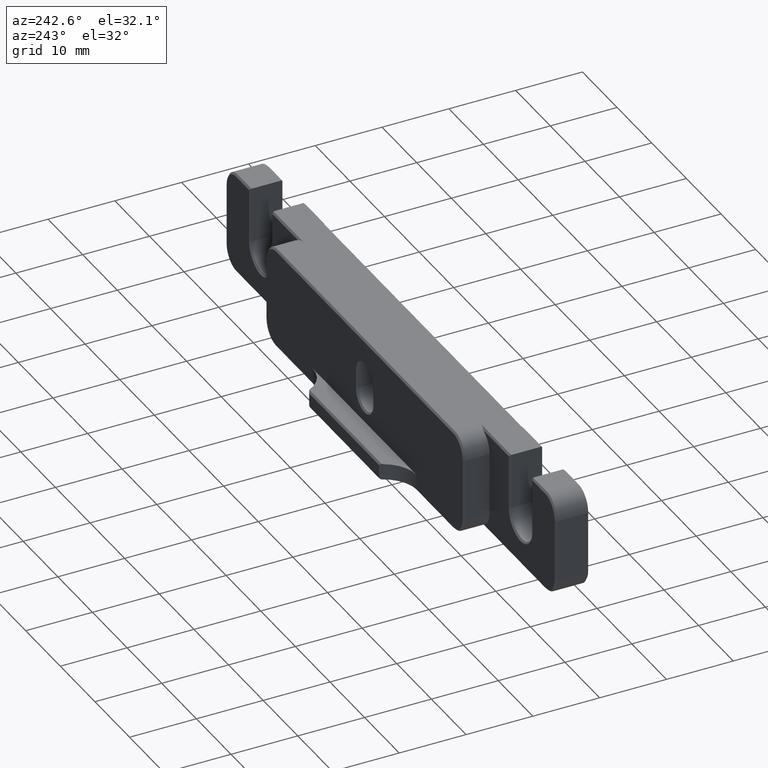
[diagram: clean part render]
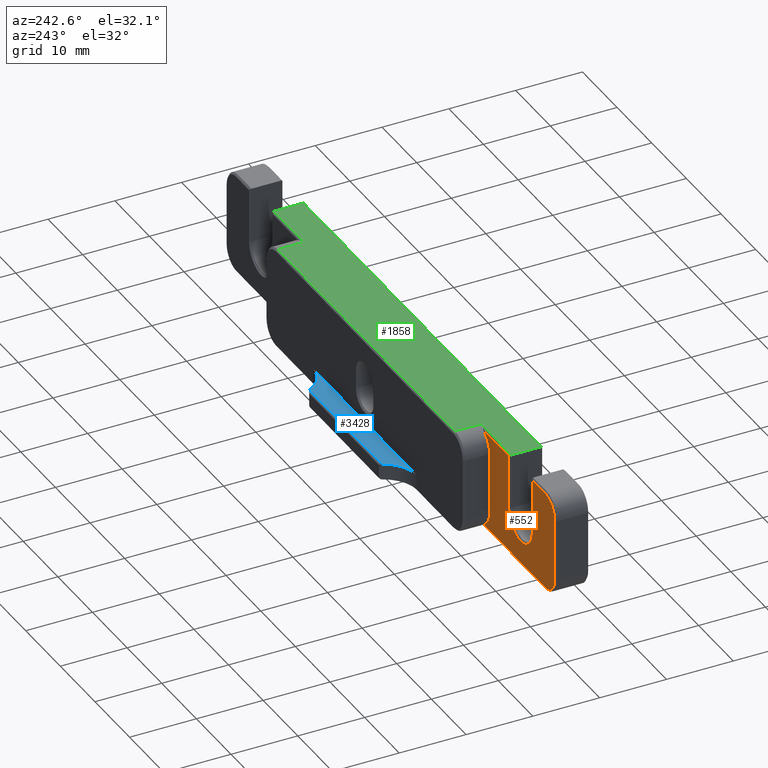
[diagram: same view with three faces highlighted in distinct colors, each labeled with its STEP entity id]
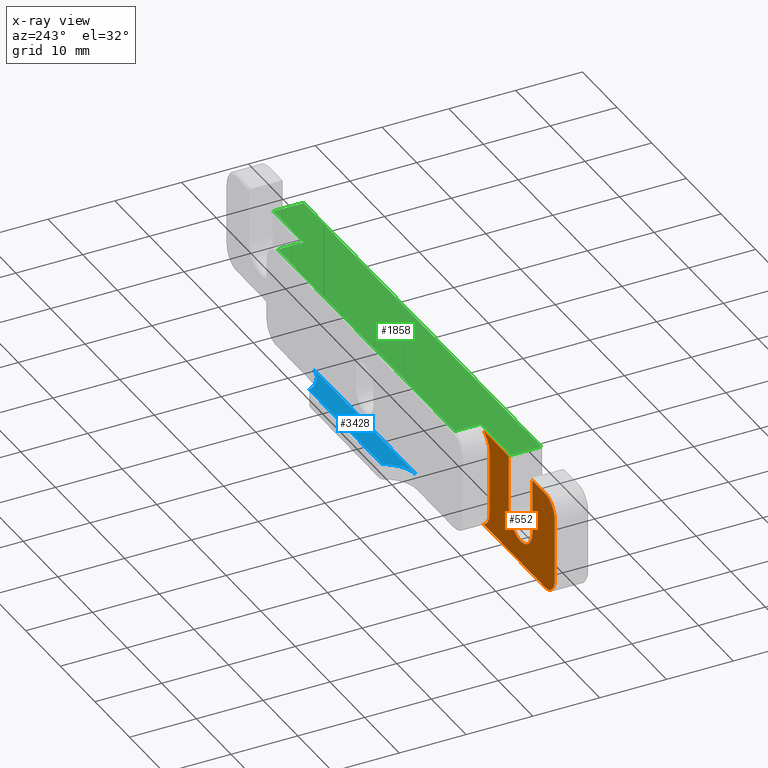
[diagram: x-ray of the same camera — body ghosted, the three highlighted faces saturated]
A machine part, auxiliary view with three faces highlighted in distinct colors.
The next image is the same camera in x-ray (body ghosted, the three faces saturated) — at least one of them is partly hidden behind the body in this view.
Their STEP definitions:

[orange] entity #552 — the highlighted planar face has unit normal (-0, 1, 0).
#81 = LINE ( 'NONE', #4003, #3856 ) ;
#115 = AXIS2_PLACEMENT_3D ( 'NONE', #4234, #1261, #3832 ) ;
#211 = ORIENTED_EDGE ( 'NONE', *, *, #3756, .T. ) ;
#268 = CARTESIAN_POINT ( 'NONE',  ( 0.000000000000000000, 5.000000000000000000, -4.336808689942017736E-16 ) ) ;
#295 = LINE ( 'NONE', #3530, #1157 ) ;
#363 = CIRCLE ( 'NONE', #3997, 3.000000000000000000 ) ;
#433 = EDGE_CURVE ( 'NONE', #4457, #1666, #295, .T. ) ;
#460 = LINE ( 'NONE', #2752, #3255 ) ;
#468 = CARTESIAN_POINT ( 'NONE',  ( -47.37500000000000000, 5.000000000000000000, 4.620000000000000107 ) ) ;
#486 = EDGE_CURVE ( 'NONE', #2975, #1041, #81, .T. ) ;
#493 = EDGE_CURVE ( 'NONE', #4743, #3083, #4669, .T. ) ;
#496 = CARTESIAN_POINT ( 'NONE',  ( -44.62500000000000000, 5.000000000000000000, -7.370000000000003659 ) ) ;
#545 = EDGE_CURVE ( 'NONE', #1882, #4457, #4193, .T. ) ;
#552 = ADVANCED_FACE ( 'NONE', ( #1533 ), #1049, .T. ) ;
#628 = DIRECTION ( 'NONE',  ( 0.000000000000000000, 0.000000000000000000, 1.000000000000000000 ) ) ;
#649 = CARTESIAN_POINT ( 'NONE',  ( -25.57499999999999574, 5.000000000000000000, -4.620000000000000995 ) ) ;
#741 = CIRCLE ( 'NONE', #2138, 2.750000000000002665 ) ;
#866 = VERTEX_POINT ( 'NONE', #4228 ) ;
#885 = DIRECTION ( 'NONE',  ( 0.000000000000000000, -1.000000000000000000, -0.000000000000000000 ) ) ;
#887 = ORIENTED_EDGE ( 'NONE', *, *, #1663, .T. ) ;
#902 = CIRCLE ( 'NONE', #3292, 3.000000000000000000 ) ;
#916 = CARTESIAN_POINT ( 'NONE',  ( -26.77395788082817418, 5.000000000000000000, 7.370000000000000107 ) ) ;
#952 = ORIENTED_EDGE ( 'NONE', *, *, #493, .T. ) ;
#1041 = VERTEX_POINT ( 'NONE', #3377 ) ;
#1049 = PLANE ( 'NONE',  #3021 ) ;
#1137 = ORIENTED_EDGE ( 'NONE', *, *, #3361, .T. ) ;
#1157 = VECTOR ( 'NONE', #3887, 1000.000000000000000 ) ;
#1260 = AXIS2_PLACEMENT_3D ( 'NONE', #2404, #885, #1650 ) ;
#1261 = DIRECTION ( 'NONE',  ( -0.000000000000000000, 1.000000000000000000, 0.000000000000000000 ) ) ;
#1335 = CARTESIAN_POINT ( 'NONE',  ( -34.07500000000000995, 5.000000000000000000, 7.370000000000000107 ) ) ;
#1406 = DIRECTION ( 'NONE',  ( -0.000000000000000000, 1.000000000000000000, 0.000000000000000000 ) ) ;
#1408 = ORIENTED_EDGE ( 'NONE', *, *, #4575, .T. ) ;
#1533 = FACE_OUTER_BOUND ( 'NONE', #4257, .T. ) ;
#1650 = DIRECTION ( 'NONE',  ( 0.000000000000000000, 0.000000000000000000, 1.000000000000000000 ) ) ;
#1659 = VERTEX_POINT ( 'NONE', #468 ) ;
#1663 = EDGE_CURVE ( 'NONE', #2549, #866, #460, .T. ) ;
#1666 = VERTEX_POINT ( 'NONE', #916 ) ;
#1712 = CARTESIAN_POINT ( 'NONE',  ( -28.57499999999999574, 5.000000000000000000, -4.620000000000000995 ) ) ;
#1723 = EDGE_CURVE ( 'NONE', #866, #1882, #3304, .T. ) ;
#1882 = VERTEX_POINT ( 'NONE', #3165 ) ;
#1921 = VERTEX_POINT ( 'NONE', #4760 ) ;
#1957 = VECTOR ( 'NONE', #1969, 1000.000000000000000 ) ;
#1969 = DIRECTION ( 'NONE',  ( 0.000000000000000000, 0.000000000000000000, 1.000000000000000000 ) ) ;
#1976 = CIRCLE ( 'NONE', #115, 2.750000000000002665 ) ;
#2041 = DIRECTION ( 'NONE',  ( 0.000000000000000000, -1.000000000000000000, -0.000000000000000000 ) ) ;
#2103 = CARTESIAN_POINT ( 'NONE',  ( -40.67500000000000426, 5.000000000000000000, 7.370000000000000107 ) ) ;
#2122 = ORIENTED_EDGE ( 'NONE', *, *, #1723, .T. ) ;
#2138 = AXIS2_PLACEMENT_3D ( 'NONE', #4732, #2796, #628 ) ;
#2141 = CARTESIAN_POINT ( 'NONE',  ( -44.62500000000000000, 5.000000000000000000, -7.370000000000000107 ) ) ;
#2383 = CARTESIAN_POINT ( 'NONE',  ( -25.57499999999999574, 5.000000000000000000, 4.619999999999999218 ) ) ;
#2404 = CARTESIAN_POINT ( 'NONE',  ( -37.50000000000000711, 5.000000000000000000, -0.6400000000000016787 ) ) ;
#2515 = DIRECTION ( 'NONE',  ( 0.000000000000000000, -0.000000000000000000, 1.000000000000000000 ) ) ;
#2549 = VERTEX_POINT ( 'NONE', #3063 ) ;
#2635 = ORIENTED_EDGE ( 'NONE', *, *, #3368, .T. ) ;
#2671 = VECTOR ( 'NONE', #3206, 1000.000000000000000 ) ;
#2752 = CARTESIAN_POINT ( 'NONE',  ( -40.92500000000000426, 5.000000000000000000, -0.6400000000000016787 ) ) ;
#2796 = DIRECTION ( 'NONE',  ( -0.000000000000000000, 1.000000000000000000, 0.000000000000000000 ) ) ;
#2846 = ORIENTED_EDGE ( 'NONE', *, *, #4122, .T. ) ;
#2898 = CARTESIAN_POINT ( 'NONE',  ( -26.77395788082817774, 5.000000000000000000, -7.370000000000000107 ) ) ;
#2975 = VERTEX_POINT ( 'NONE', #1712 ) ;
#2987 = VECTOR ( 'NONE', #4700, 1000.000000000000000 ) ;
#3021 = AXIS2_PLACEMENT_3D ( 'NONE', #268, #1406, #2515 ) ;
#3063 = CARTESIAN_POINT ( 'NONE',  ( -40.92500000000000426, 5.000000000000000000, 7.370000000000000107 ) ) ;
#3083 = VERTEX_POINT ( 'NONE', #496 ) ;
#3120 = DIRECTION ( 'NONE',  ( 0.000000000000000000, 0.000000000000000000, -1.000000000000000000 ) ) ;
#3125 = DIRECTION ( 'NONE',  ( 0.000000000000000000, 0.000000000000000000, 1.000000000000000000 ) ) ;
#3165 = CARTESIAN_POINT ( 'NONE',  ( -34.07500000000000995, 5.000000000000000000, -0.6400000000000191092 ) ) ;
#3168 = EDGE_CURVE ( 'NONE', #1659, #3220, #1976, .T. ) ;
#3206 = DIRECTION ( 'NONE',  ( 1.000000000000000000, 0.000000000000000000, 0.000000000000000000 ) ) ;
#3210 = DIRECTION ( 'NONE',  ( 0.000000000000000000, 0.000000000000000000, 1.000000000000000000 ) ) ;
#3220 = VERTEX_POINT ( 'NONE', #4601 ) ;
#3255 = VECTOR ( 'NONE', #3120, 1000.000000000000000 ) ;
#3292 = AXIS2_PLACEMENT_3D ( 'NONE', #649, #4311, #3513 ) ;
#3304 = CIRCLE ( 'NONE', #1260, 3.424999999999997602 ) ;
#3361 = EDGE_CURVE ( 'NONE', #2975, #4743, #902, .T. ) ;
#3368 = EDGE_CURVE ( 'NONE', #3220, #2549, #4469, .T. ) ;
#3377 = CARTESIAN_POINT ( 'NONE',  ( -28.57499999999999574, 5.000000000000000000, 4.619999999999999218 ) ) ;
#3386 = VECTOR ( 'NONE', #3953, 1000.000000000000000 ) ;
#3513 = DIRECTION ( 'NONE',  ( 1.156482317317871331E-15, 0.000000000000000000, 1.000000000000000000 ) ) ;
#3530 = CARTESIAN_POINT ( 'NONE',  ( -25.57499999999999574, 5.000000000000000000, 7.370000000000000107 ) ) ;
#3540 = ORIENTED_EDGE ( 'NONE', *, *, #433, .T. ) ;
#3587 = ORIENTED_EDGE ( 'NONE', *, *, #3168, .T. ) ;
#3605 = CARTESIAN_POINT ( 'NONE',  ( -34.07500000000000995, 5.000000000000000000, 7.619999999999999218 ) ) ;
#3631 = ORIENTED_EDGE ( 'NONE', *, *, #486, .F. ) ;
#3756 = EDGE_CURVE ( 'NONE', #1921, #1659, #4506, .T. ) ;
#3832 = DIRECTION ( 'NONE',  ( 0.000000000000000000, 0.000000000000000000, 1.000000000000000000 ) ) ;
#3856 = VECTOR ( 'NONE', #3210, 1000.000000000000000 ) ;
#3887 = DIRECTION ( 'NONE',  ( 1.000000000000000000, 0.000000000000000000, 0.000000000000000000 ) ) ;
#3953 = DIRECTION ( 'NONE',  ( -1.000000000000000000, 0.000000000000000000, 0.000000000000000000 ) ) ;
#3997 = AXIS2_PLACEMENT_3D ( 'NONE', #2383, #2041, #3125 ) ;
#4003 = CARTESIAN_POINT ( 'NONE',  ( -28.57499999999999574, 5.000000000000000000, -7.620000000000000107 ) ) ;
#4122 = EDGE_CURVE ( 'NONE', #1666, #1041, #363, .T. ) ;
#4184 = CARTESIAN_POINT ( 'NONE',  ( -47.37500000000000000, 5.000000000000000000, 4.620000000000000107 ) ) ;
#4193 = LINE ( 'NONE', #3605, #2987 ) ;
#4228 = CARTESIAN_POINT ( 'NONE',  ( -40.92500000000000426, 5.000000000000000000, -0.6400000000000016787 ) ) ;
#4234 = CARTESIAN_POINT ( 'NONE',  ( -44.62500000000000000, 5.000000000000000000, 4.619999999999999218 ) ) ;
#4257 = EDGE_LOOP ( 'NONE', ( #1137, #952, #1408, #211, #3587, #2635, #887, #2122, #4648, #3540, #2846, #3631 ) ) ;
#4311 = DIRECTION ( 'NONE',  ( 0.000000000000000000, -1.000000000000000000, -0.000000000000000000 ) ) ;
#4457 = VERTEX_POINT ( 'NONE', #1335 ) ;
#4469 = LINE ( 'NONE', #2103, #2671 ) ;
#4506 = LINE ( 'NONE', #4184, #1957 ) ;
#4575 = EDGE_CURVE ( 'NONE', #3083, #1921, #741, .T. ) ;
#4601 = CARTESIAN_POINT ( 'NONE',  ( -44.62500000000000000, 5.000000000000000000, 7.370000000000000107 ) ) ;
#4648 = ORIENTED_EDGE ( 'NONE', *, *, #545, .T. ) ;
#4669 = LINE ( 'NONE', #2141, #3386 ) ;
#4700 = DIRECTION ( 'NONE',  ( 0.000000000000000000, 0.000000000000000000, 1.000000000000000000 ) ) ;
#4732 = CARTESIAN_POINT ( 'NONE',  ( -44.62500000000000000, 5.000000000000000000, -4.620000000000000995 ) ) ;
#4743 = VERTEX_POINT ( 'NONE', #2898 ) ;
#4760 = CARTESIAN_POINT ( 'NONE',  ( -47.37500000000000000, 5.000000000000000000, -4.620000000000000995 ) ) ;

[blue] entity #3428 — the highlighted planar face has unit normal (0, 0, -1).
#43 = DIRECTION ( 'NONE',  ( -1.000000000000000000, 0.000000000000000000, -0.000000000000000000 ) ) ;
#206 = EDGE_CURVE ( 'NONE', #641, #2700, #4382, .T. ) ;
#420 = CARTESIAN_POINT ( 'NONE',  ( -10.37506756806112840, 11.75000000000001066, -5.080000000000000959 ) ) ;
#511 = ORIENTED_EDGE ( 'NONE', *, *, #4569, .T. ) ;
#516 = LINE ( 'NONE', #1632, #1931 ) ;
#641 = VERTEX_POINT ( 'NONE', #420 ) ;
#792 = DIRECTION ( 'NONE',  ( 0.000000000000000000, 0.000000000000000000, -1.000000000000000000 ) ) ;
#815 = VECTOR ( 'NONE', #4113, 999.9999999999998863 ) ;
#858 = VERTEX_POINT ( 'NONE', #3493 ) ;
#1007 = CARTESIAN_POINT ( 'NONE',  ( -10.60007507590181852, 11.52499249215932053, -5.080000000000000071 ) ) ;
#1017 = LINE ( 'NONE', #4247, #3186 ) ;
#1044 = CARTESIAN_POINT ( 'NONE',  ( 15.00000000000000000, 8.900000000000005684, -5.080000000000000959 ) ) ;
#1108 = CARTESIAN_POINT ( 'NONE',  ( -28.57499999999999574, -58.54410730380983807, -5.080000000000000959 ) ) ;
#1114 = CARTESIAN_POINT ( 'NONE',  ( -15.00000000000000000, 8.900000000000005684, -5.080000000000000071 ) ) ;
#1225 = EDGE_CURVE ( 'NONE', #1474, #3710, #1017, .T. ) ;
#1269 = ORIENTED_EDGE ( 'NONE', *, *, #3447, .T. ) ;
#1294 = DIRECTION ( 'NONE',  ( 1.000000000000000000, -0.000000000000000000, 0.000000000000000000 ) ) ;
#1314 = PLANE ( 'NONE',  #2155 ) ;
#1340 = ORIENTED_EDGE ( 'NONE', *, *, #206, .T. ) ;
#1474 = VERTEX_POINT ( 'NONE', #1114 ) ;
#1569 = ORIENTED_EDGE ( 'NONE', *, *, #1225, .T. ) ;
#1632 = CARTESIAN_POINT ( 'NONE',  ( -10.37506756806113017, 11.75000000000001066, -5.080000000000000959 ) ) ;
#1879 = CARTESIAN_POINT ( 'NONE',  ( -10.60007507590181675, 11.52499249215932231, -5.080000000000000071 ) ) ;
#1931 = VECTOR ( 'NONE', #3858, 1000.000000000000000 ) ;
#2060 = AXIS2_PLACEMENT_3D ( 'NONE', #3537, #4279, #3178 ) ;
#2155 = AXIS2_PLACEMENT_3D ( 'NONE', #1108, #792, #43 ) ;
#2179 = CIRCLE ( 'NONE', #2060, 5.000000000000000888 ) ;
#2595 = DIRECTION ( 'NONE',  ( -1.000000000000000000, 0.000000000000000000, 0.000000000000000000 ) ) ;
#2694 = ORIENTED_EDGE ( 'NONE', *, *, #4331, .T. ) ;
#2700 = VERTEX_POINT ( 'NONE', #1007 ) ;
#3178 = DIRECTION ( 'NONE',  ( -1.000000000000000000, 0.000000000000000000, 0.000000000000000000 ) ) ;
#3186 = VECTOR ( 'NONE', #1294, 1000.000000000000000 ) ;
#3372 = FACE_OUTER_BOUND ( 'NONE', #4139, .T. ) ;
#3428 = ADVANCED_FACE ( 'NONE', ( #3372 ), #1314, .F. ) ;
#3447 = EDGE_CURVE ( 'NONE', #2700, #1474, #4578, .T. ) ;
#3493 = CARTESIAN_POINT ( 'NONE',  ( 10.48585556278933062, 11.75000000000001066, -5.080000000000000071 ) ) ;
#3537 = CARTESIAN_POINT ( 'NONE',  ( 15.00000000000000000, 13.90000000000000568, -5.080000000000000071 ) ) ;
#3710 = VERTEX_POINT ( 'NONE', #1044 ) ;
#3711 = DIRECTION ( 'NONE',  ( 0.000000000000000000, 0.000000000000000000, -1.000000000000000000 ) ) ;
#3740 = CARTESIAN_POINT ( 'NONE',  ( -15.00000000000000000, 13.90000000000000568, -5.080000000000000071 ) ) ;
#3858 = DIRECTION ( 'NONE',  ( -1.000000000000000000, 0.000000000000000000, 0.000000000000000000 ) ) ;
#4113 = DIRECTION ( 'NONE',  ( -0.7071067811865489050, -0.7071067811865462405, -0.000000000000000000 ) ) ;
#4139 = EDGE_LOOP ( 'NONE', ( #2694, #511, #1340, #1269, #1569 ) ) ;
#4247 = CARTESIAN_POINT ( 'NONE',  ( -28.57499999999999574, 8.900000000000005684, -5.080000000000000959 ) ) ;
#4278 = AXIS2_PLACEMENT_3D ( 'NONE', #3740, #3711, #2595 ) ;
#4279 = DIRECTION ( 'NONE',  ( 0.000000000000000000, 0.000000000000000000, -1.000000000000000000 ) ) ;
#4331 = EDGE_CURVE ( 'NONE', #3710, #858, #2179, .T. ) ;
#4382 = LINE ( 'NONE', #1879, #815 ) ;
#4569 = EDGE_CURVE ( 'NONE', #858, #641, #516, .T. ) ;
#4578 = CIRCLE ( 'NONE', #4278, 5.000000000000000888 ) ;

[green] entity #1858 — the highlighted planar face has unit normal (0, 0, -1).
#64 = EDGE_CURVE ( 'NONE', #3741, #2620, #3156, .T. ) ;
#65 = VECTOR ( 'NONE', #108, 1000.000000000000000 ) ;
#72 = DIRECTION ( 'NONE',  ( -0.000000000000000000, 1.000000000000000000, 0.000000000000000000 ) ) ;
#108 = DIRECTION ( 'NONE',  ( 0.000000000000000000, 1.000000000000000000, 0.000000000000000000 ) ) ;
#141 = DIRECTION ( 'NONE',  ( 1.000000000000000000, 0.000000000000000000, 0.000000000000000000 ) ) ;
#143 = CARTESIAN_POINT ( 'NONE',  ( -47.62500000000000000, 0.2500000000000002220, 7.619999999999999218 ) ) ;
#181 = ORIENTED_EDGE ( 'NONE', *, *, #3081, .T. ) ;
#298 = CARTESIAN_POINT ( 'NONE',  ( 25.57499999999999929, 8.649999999999998579, 7.619999999999999218 ) ) ;
#330 = DIRECTION ( 'NONE',  ( 0.000000000000000000, -1.000000000000000000, 0.000000000000000000 ) ) ;
#342 = LINE ( 'NONE', #143, #2389 ) ;
#386 = EDGE_LOOP ( 'NONE', ( #2414, #4473, #2683, #181, #3380, #2426, #4733, #2181, #1610, #2044 ) ) ;
#501 = CARTESIAN_POINT ( 'NONE',  ( 34.32500000000000995, 0.2500000000000002220, 7.619999999999999218 ) ) ;
#506 = LINE ( 'NONE', #1952, #3365 ) ;
#515 = DIRECTION ( 'NONE',  ( -1.000000000000000000, 0.000000000000000000, 0.000000000000000000 ) ) ;
#605 = DIRECTION ( 'NONE',  ( -1.000000000000000000, 0.000000000000000000, 0.000000000000000000 ) ) ;
#644 = PLANE ( 'NONE',  #2332 ) ;
#703 = VECTOR ( 'NONE', #3418, 1000.000000000000000 ) ;
#811 = CARTESIAN_POINT ( 'NONE',  ( 25.57499999999999929, 4.750000000000000000, 7.619999999999999218 ) ) ;
#824 = EDGE_CURVE ( 'NONE', #2620, #909, #342, .T. ) ;
#842 = VECTOR ( 'NONE', #3759, 1000.000000000000000 ) ;
#870 = CARTESIAN_POINT ( 'NONE',  ( 28.57499999999999574, 0.2500000000000000000, 7.619999999999999218 ) ) ;
#899 = CARTESIAN_POINT ( 'NONE',  ( -34.32500000000000995, 0.2500000000000002220, 7.619999999999999218 ) ) ;
#909 = VERTEX_POINT ( 'NONE', #1845 ) ;
#944 = CARTESIAN_POINT ( 'NONE',  ( -25.57499999999999574, 8.649999999999998579, 7.619999999999999218 ) ) ;
#983 = DIRECTION ( 'NONE',  ( 0.000000000000000000, 0.000000000000000000, -1.000000000000000000 ) ) ;
#1031 = EDGE_CURVE ( 'NONE', #3893, #1917, #1577, .T. ) ;
#1046 = CARTESIAN_POINT ( 'NONE',  ( 34.32500000000000995, 4.750000000000000000, 7.619999999999999218 ) ) ;
#1127 = FACE_OUTER_BOUND ( 'NONE', #386, .T. ) ;
#1188 = LINE ( 'NONE', #811, #842 ) ;
#1208 = EDGE_CURVE ( 'NONE', #3672, #3741, #506, .T. ) ;
#1263 = VECTOR ( 'NONE', #141, 1000.000000000000000 ) ;
#1302 = LINE ( 'NONE', #3682, #2172 ) ;
#1451 = DIRECTION ( 'NONE',  ( -1.000000000000000000, 0.000000000000000000, 0.000000000000000000 ) ) ;
#1573 = CARTESIAN_POINT ( 'NONE',  ( -47.62500000000000000, 0.2500000000000002220, 7.619999999999999218 ) ) ;
#1577 = LINE ( 'NONE', #2263, #65 ) ;
#1610 = ORIENTED_EDGE ( 'NONE', *, *, #64, .T. ) ;
#1629 = CARTESIAN_POINT ( 'NONE',  ( -25.57499999999999574, 8.649999999999998579, 7.619999999999999218 ) ) ;
#1729 = VERTEX_POINT ( 'NONE', #870 ) ;
#1845 = CARTESIAN_POINT ( 'NONE',  ( -28.57500000000000284, 0.2500000000000000000, 7.619999999999999218 ) ) ;
#1858 = ADVANCED_FACE ( 'NONE', ( #1127 ), #644, .F. ) ;
#1917 = VERTEX_POINT ( 'NONE', #1046 ) ;
#1952 = CARTESIAN_POINT ( 'NONE',  ( -34.32500000000000995, 4.750000000000000000, 7.619999999999999218 ) ) ;
#1977 = CARTESIAN_POINT ( 'NONE',  ( -25.57499999999999574, 5.000000000000000000, 7.619999999999999218 ) ) ;
#2044 = ORIENTED_EDGE ( 'NONE', *, *, #824, .T. ) ;
#2172 = VECTOR ( 'NONE', #1451, 1000.000000000000000 ) ;
#2181 = ORIENTED_EDGE ( 'NONE', *, *, #1208, .T. ) ;
#2244 = LINE ( 'NONE', #1573, #1263 ) ;
#2261 = VERTEX_POINT ( 'NONE', #1629 ) ;
#2263 = CARTESIAN_POINT ( 'NONE',  ( 34.32500000000000995, 12.00000000000000000, 7.619999999999999218 ) ) ;
#2318 = CARTESIAN_POINT ( 'NONE',  ( 25.57499999999999929, 4.750000000000000000, 7.619999999999999218 ) ) ;
#2332 = AXIS2_PLACEMENT_3D ( 'NONE', #4652, #983, #2474 ) ;
#2388 = LINE ( 'NONE', #944, #3254 ) ;
#2389 = VECTOR ( 'NONE', #3052, 1000.000000000000000 ) ;
#2414 = ORIENTED_EDGE ( 'NONE', *, *, #4508, .F. ) ;
#2426 = ORIENTED_EDGE ( 'NONE', *, *, #4605, .T. ) ;
#2474 = DIRECTION ( 'NONE',  ( -1.000000000000000000, 0.000000000000000000, -0.000000000000000000 ) ) ;
#2524 = VERTEX_POINT ( 'NONE', #2318 ) ;
#2620 = VERTEX_POINT ( 'NONE', #899 ) ;
#2637 = LINE ( 'NONE', #2660, #3435 ) ;
#2660 = CARTESIAN_POINT ( 'NONE',  ( 25.57499999999999929, 8.900000000000000355, 7.619999999999999218 ) ) ;
#2683 = ORIENTED_EDGE ( 'NONE', *, *, #1031, .T. ) ;
#3052 = DIRECTION ( 'NONE',  ( 1.000000000000000000, 0.000000000000000000, 0.000000000000000000 ) ) ;
#3081 = EDGE_CURVE ( 'NONE', #1917, #2524, #1188, .T. ) ;
#3156 = LINE ( 'NONE', #4105, #3703 ) ;
#3254 = VECTOR ( 'NONE', #605, 1000.000000000000000 ) ;
#3365 = VECTOR ( 'NONE', #515, 1000.000000000000000 ) ;
#3380 = ORIENTED_EDGE ( 'NONE', *, *, #4393, .T. ) ;
#3418 = DIRECTION ( 'NONE',  ( 0.000000000000000000, -1.000000000000000000, -0.000000000000000000 ) ) ;
#3435 = VECTOR ( 'NONE', #72, 1000.000000000000000 ) ;
#3672 = VERTEX_POINT ( 'NONE', #4577 ) ;
#3682 = CARTESIAN_POINT ( 'NONE',  ( 28.57499999999999574, 0.2500000000000000000, 7.619999999999999218 ) ) ;
#3703 = VECTOR ( 'NONE', #330, 1000.000000000000000 ) ;
#3741 = VERTEX_POINT ( 'NONE', #4390 ) ;
#3759 = DIRECTION ( 'NONE',  ( -1.000000000000000000, 0.000000000000000000, 0.000000000000000000 ) ) ;
#3791 = VERTEX_POINT ( 'NONE', #298 ) ;
#3893 = VERTEX_POINT ( 'NONE', #501 ) ;
#3935 = EDGE_CURVE ( 'NONE', #1729, #3893, #2244, .T. ) ;
#4024 = EDGE_CURVE ( 'NONE', #2261, #3672, #4606, .T. ) ;
#4105 = CARTESIAN_POINT ( 'NONE',  ( -34.32500000000000995, 12.00000000000000000, 7.619999999999999218 ) ) ;
#4390 = CARTESIAN_POINT ( 'NONE',  ( -34.32500000000000995, 4.750000000000000000, 7.619999999999999218 ) ) ;
#4393 = EDGE_CURVE ( 'NONE', #2524, #3791, #2637, .T. ) ;
#4473 = ORIENTED_EDGE ( 'NONE', *, *, #3935, .T. ) ;
#4508 = EDGE_CURVE ( 'NONE', #1729, #909, #1302, .T. ) ;
#4577 = CARTESIAN_POINT ( 'NONE',  ( -25.57499999999999574, 4.750000000000000000, 7.619999999999999218 ) ) ;
#4605 = EDGE_CURVE ( 'NONE', #3791, #2261, #2388, .T. ) ;
#4606 = LINE ( 'NONE', #1977, #703 ) ;
#4652 = CARTESIAN_POINT ( 'NONE',  ( -47.62500000000000000, 12.00000000000000000, 7.619999999999999218 ) ) ;
#4733 = ORIENTED_EDGE ( 'NONE', *, *, #4024, .T. ) ;